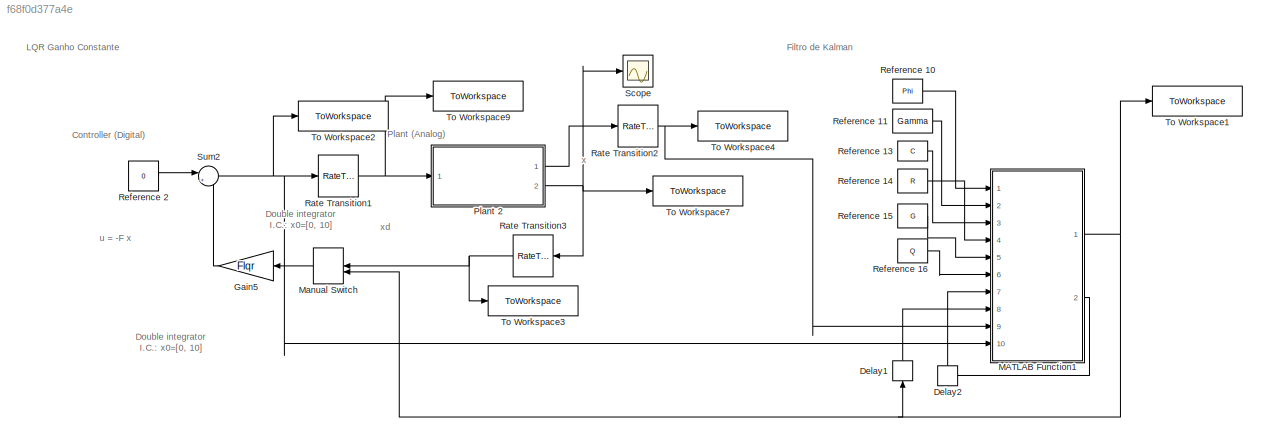
MODEL slx_f68f0d377a4e
KIND model
CONFIG AbsTol = auto
CONFIG EnableMultiTasking = off
CONFIG FixedStep = auto
CONFIG MaxStep = auto
CONFIG MinStep = auto
CONFIG RelTol = 1e-3
CONFIG SampleTimeConstraint = Unconstrained
CONFIG SolverName = VariableStepAuto
CONFIG StartTime = 0.0
CONFIG StopTime = 10.0
BLOCK [Delay] Delay1
  DelayLength = 1
  InitialCondition = 0
  InputPortMap = u0
  NameLocation = left
  Ports = [1, 1]
  SampleTime = h
BLOCK [Delay] Delay2
  DelayLength = 1
  InitialCondition = [1 0;0 1]
  InputPortMap = u0
  NameLocation = left
  Ports = [1, 1]
  SampleTime = h
BLOCK [Gain] Gain5
  Gain = Flqr
  Multiplication = Matrix(K*u)
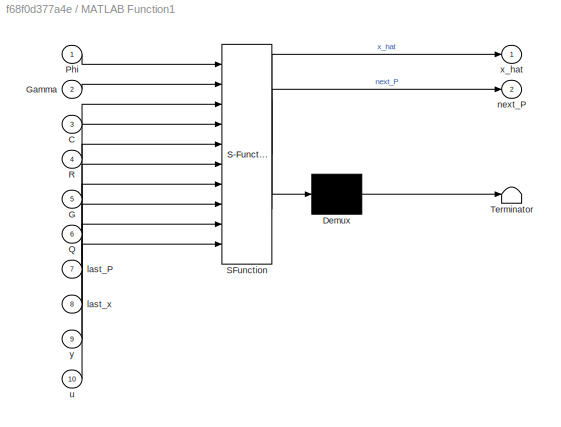
BLOCK [SubSystem] MATLAB Function1
  ErrorFcn = Stateflow.Translate.translate
  PermitHierarchicalResolution = ExplicitOnly
  Ports = [10, 2]
  RequestExecContextInheritance = off
  SFBlockType = MATLAB Function
  TreatAsAtomicUnit = on
BLOCK [Demux] MATLAB Function1/ Demux 
  Outputs = 1
  Ports = [1, 1]
BLOCK [S-Function] MATLAB Function1/ SFunction 
  EnableBusSupport = on
  FunctionName = sf_sfun
  PortCounts = [10 3]
  Ports = [10, 3]
  SFcnIsStateOwnerBlock = off
  SFunctionDeploymentMode = off
  Tag = Stateflow S-Function 3
BLOCK [Terminator] MATLAB Function1/ Terminator 
BLOCK [Inport] MATLAB Function1/C
  Port = 3
BLOCK [Inport] MATLAB Function1/G
  Port = 5
BLOCK [Inport] MATLAB Function1/Gamma
  Port = 2
BLOCK [Inport] MATLAB Function1/Phi
BLOCK [Inport] MATLAB Function1/Q
  Port = 6
BLOCK [Inport] MATLAB Function1/R
  Port = 4
BLOCK [Inport] MATLAB Function1/last_P
  Port = 7
BLOCK [Inport] MATLAB Function1/last_x
  Port = 8
BLOCK [Outport] MATLAB Function1/next_P
  Port = 2
BLOCK [Inport] MATLAB Function1/u
  Port = 10
BLOCK [Outport] MATLAB Function1/x_hat
BLOCK [Inport] MATLAB Function1/y
  Port = 9
BLOCK [ManualSwitch] Manual Switch
  CurrentSetting = 0
  NameLocation = top
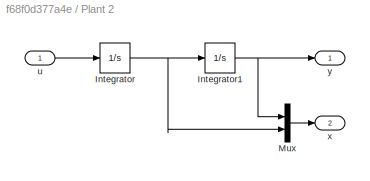
BLOCK [SubSystem] Plant 2
  Ports = [1, 2]
  RequestExecContextInheritance = off
BLOCK [Integrator] Plant 2/Integrator
  InitialCondition = x20
  Ports = [1, 1]
BLOCK [Integrator] Plant 2/Integrator1
  InitialCondition = x10
  Ports = [1, 1]
BLOCK [Mux] Plant 2/Mux
  DisplayOption = bar
  Inputs = 2
  Ports = [2, 1]
BLOCK [Inport] Plant 2/u
BLOCK [Outport] Plant 2/x
  Port = 2
BLOCK [Outport] Plant 2/y
BLOCK [RateTransition] Rate Transition1
  Integrity = off
  OutPortSampleTime = h_plant
BLOCK [RateTransition] Rate Transition2
  Integrity = off
  OutPortSampleTime = h
BLOCK [RateTransition] Rate Transition3
  Integrity = off
  NameLocation = top
  OutPortSampleTime = h
BLOCK [Constant] Reference 10
  SampleTime = h
  Value = Phi
  VectorParams1D = off
BLOCK [Constant] Reference 11
  SampleTime = h
  Value = Gamma
  VectorParams1D = off
BLOCK [Constant] Reference 13
  SampleTime = h
  Value = C
  VectorParams1D = off
BLOCK [Constant] Reference 14
  SampleTime = h
  Value = R
  VectorParams1D = off
BLOCK [Constant] Reference 15
  SampleTime = h
  Value = G
  VectorParams1D = off
BLOCK [Constant] Reference 16
  SampleTime = h
  Value = Q
  VectorParams1D = off
BLOCK [Constant] Reference 2
  SampleTime = h
  Value = 0
BLOCK [Scope] Scope
  Floating = off
  NumInputPorts = 1
  Ports = [1]
  ScopeSpecificationString = Simulink.scopes.TimeScopeBlockCfg('CurrentConfiguration', extmgr.ConfigurationSet(extmgr.Configuration('Core','General UI',true),extmgr.Configuration('Core','Source UI',true),extmgr.Configuration('Sources','WiredSimulink',true),extmgr.Configuration('Visuals','Time Domain',true,'SerializedDisplays',{struct('MinYLimReal','-6.60624','MaxYLimReal','17.58412','YLabelReal','','MinYLimMag','0.00000','Max...<+1349ch>
BLOCK [Sum] Sum2
  Inputs = |+-
  Ports = [2, 1]
BLOCK [ToWorkspace] To Workspace1
  FixptAsFi = on
  MaxDataPoints = inf
  Ports = [1]
  SampleTime = -1
  SaveFormat = Timeseries
  VariableName = x_hat
BLOCK [ToWorkspace] To Workspace2
  FixptAsFi = on
  MaxDataPoints = inf
  Ports = [1]
  SampleTime = -1
  SaveFormat = Timeseries
  VariableName = ud
BLOCK [ToWorkspace] To Workspace3
  FixptAsFi = on
  MaxDataPoints = inf
  Ports = [1]
  SampleTime = -1
  SaveFormat = Timeseries
  VariableName = xd
BLOCK [ToWorkspace] To Workspace4
  FixptAsFi = on
  MaxDataPoints = inf
  Ports = [1]
  SampleTime = -1
  SaveFormat = Timeseries
  VariableName = yd
BLOCK [ToWorkspace] To Workspace7
  FixptAsFi = on
  MaxDataPoints = inf
  Ports = [1]
  SampleTime = -1
  SaveFormat = Timeseries
  VariableName = x
BLOCK [ToWorkspace] To Workspace9
  FixptAsFi = on
  MaxDataPoints = inf
  Ports = [1]
  SampleTime = -1
  SaveFormat = Timeseries
  VariableName = u
ANNOTATION (root): x
ANNOTATION (root): xd
ANNOTATION (root): u = -F x
ANNOTATION (root): Controller (Digital)
ANNOTATION (root): Double integrator I.C.: x0=[0, 10]
ANNOTATION (root): Filtro de Kalman
ANNOTATION (root): LQR Ganho Constante
ANNOTATION (root): Plant (Analog)
LINE Delay1:1 -> MATLAB Function1:8
LINE Delay2:1 -> MATLAB Function1:7
LINE Gain5:1 -> Sum2:2
NET MATLAB Function1:1 -> Delay1:1, Manual Switch:2, To Workspace1:1
LINE MATLAB Function1:2 -> Delay2:1
LINE Manual Switch:1 -> Gain5:1
NET Plant 2/Integrator1:1 -> Plant 2/Mux:1, Plant 2/y:1
NET Plant 2/Integrator:1 -> Plant 2/Integrator1:1, Plant 2/Mux:2
LINE Plant 2/Mux:1 -> Plant 2/x:1
LINE Plant 2/u:1 -> Plant 2/Integrator:1
LINE Plant 2:1 -> Rate Transition2:1
NET Plant 2:2 -> Rate Transition3:1, Scope:1, To Workspace7:1
NET Rate Transition1:1 -> Plant 2:1, To Workspace9:1
NET Rate Transition2:1 -> MATLAB Function1:9, To Workspace4:1
NET Rate Transition3:1 -> Manual Switch:1, To Workspace3:1
LINE Reference 10:1 -> MATLAB Function1:1
LINE Reference 11:1 -> MATLAB Function1:2
LINE Reference 13:1 -> MATLAB Function1:3
LINE Reference 14:1 -> MATLAB Function1:4
LINE Reference 15:1 -> MATLAB Function1:5
LINE Reference 16:1 -> MATLAB Function1:6
LINE Reference 2:1 -> Sum2:1
NET Sum2:1 -> MATLAB Function1:10, Rate Transition1:1, To Workspace2:1
note: NET lines group one-source signal fan-out (src -> all destinations, sorted); 1:1 wires keep LINE
CHART MATLAB Function1 states=1 transitions=1
  STATE_LABEL 'eML_blk_kernel()'
  STATE_LABEL "SCRIPT:\n    function [x_hat, next_P] = fcn(Phi, Gamma, C, R, G, Q, last_P, last_x, y, u)\n\nP = inv(last_P) + C'*inv(R)*C;\nP = inv(P);\nnext_P = Phi*P*Phi' + G*Q*G';\nL = P*C'*inv(R);\nx = last_x + L*(y - C*last_x);\nx_hat = Phi*x + Gamma*u;\n"
CHART  states=0 transitions=0
